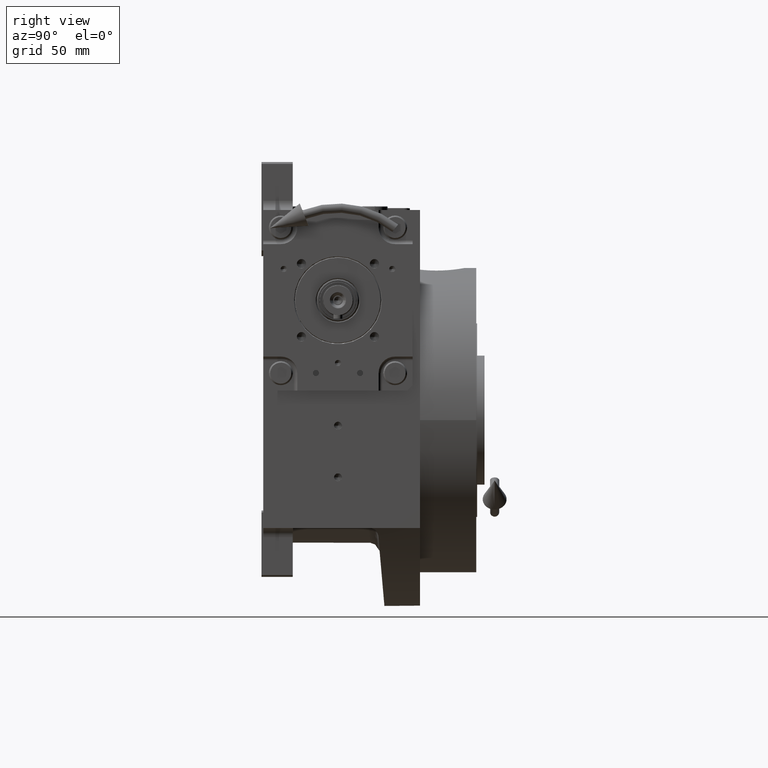
[diagram: clean part render]
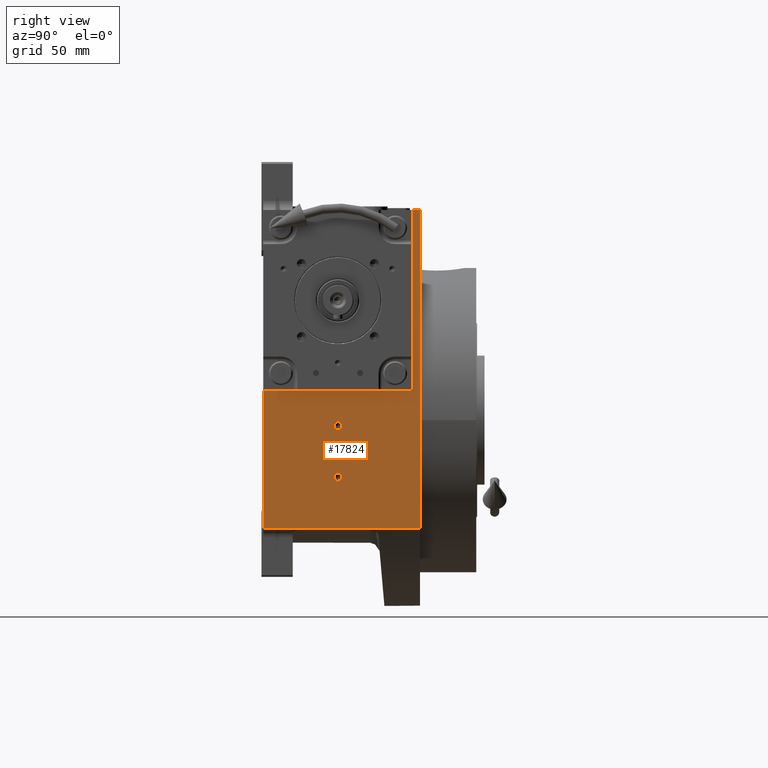
[diagram: same view with one face highlighted and labeled with its STEP entity id]
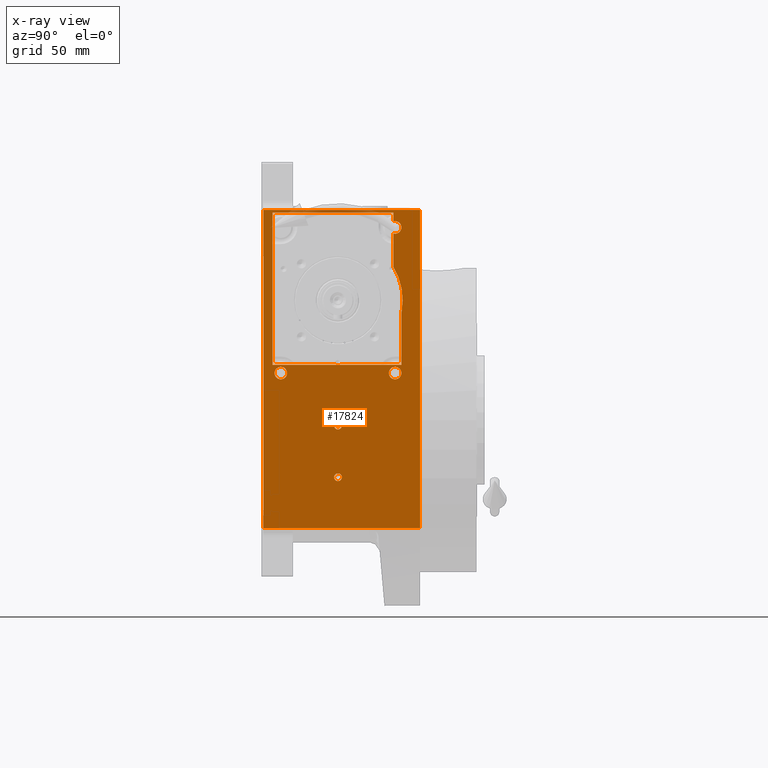
[diagram: x-ray of the same camera — body ghosted, the highlighted face saturated]
A machine part, right view. The second image highlights one B-rep face of the part: STEP entity #17824.
The next image is the same camera in x-ray: the body ghosted, the highlighted face saturated — about 1% of this face is hidden behind the body in this view.
In plain terms, the highlighted planar face has unit normal (1, 0, -0).
Its self-contained STEP definition (entity closure, byte-faithful):
#179 = ORIENTED_EDGE ( 'NONE', *, *, #26712, .T. ) ;
#329 = CARTESIAN_POINT ( 'NONE',  ( 82.50000000000000000, 34.49999998686116243, 58.58312853369196205 ) ) ;
#636 = EDGE_LOOP ( 'NONE', ( #24340, #58828 ) ) ;
#1075 = VERTEX_POINT ( 'NONE', #16192 ) ;
#1193 = CARTESIAN_POINT ( 'NONE',  ( 82.50000000000000000, -27.59999999999999787, 25.50000000000000000 ) ) ;
#1353 = ORIENTED_EDGE ( 'NONE', *, *, #31194, .F. ) ;
#1822 = EDGE_CURVE ( 'NONE', #35658, #33334, #29864, .T. ) ;
#2094 = CARTESIAN_POINT ( 'NONE',  ( 82.50000000000000000, 0.000000000000000000, -3.000000000000000000 ) ) ;
#2337 = EDGE_CURVE ( 'NONE', #7049, #26649, #61303, .T. ) ;
#3577 = ORIENTED_EDGE ( 'NONE', *, *, #23178, .T. ) ;
#3759 = CARTESIAN_POINT ( 'NONE',  ( 82.50000000000000000, -40.50000000000000000, 112.4999999999999005 ) ) ;
#3854 = EDGE_CURVE ( 'NONE', #24035, #47354, #33181, .T. ) ;
#3869 = DIRECTION ( 'NONE',  ( -1.647635329298784785E-16, -4.048429820936533247E-12, -1.000000000000000000 ) ) ;
#4087 = CARTESIAN_POINT ( 'NONE',  ( 82.50000000000000000, 33.81974078154515695, 74.46453734952115155 ) ) ;
#5328 = VERTEX_POINT ( 'NONE', #43110 ) ;
#5570 = CIRCLE ( 'NONE', #41683, 2.100000000000000089 ) ;
#5757 = CIRCLE ( 'NONE', #53214, 2.100000000000000089 ) ;
#5768 = CARTESIAN_POINT ( 'NONE',  ( 82.50000000000000000, 31.00000000000000000, 104.5000000000000000 ) ) ;
#6129 = CARTESIAN_POINT ( 'NONE',  ( 82.50000000000000000, 16.91835670641390266, -58.49999999999130296 ) ) ;
#6646 = DIRECTION ( 'NONE',  ( 0.000000000000000000, 1.000000000000000000, 0.000000000000000000 ) ) ;
#6895 = DIRECTION ( 'NONE',  ( 0.000000000000000000, -1.000000000000000000, -8.260587980841937794E-16 ) ) ;
#6956 = FACE_OUTER_BOUND ( 'NONE', #35726, .T. ) ;
#7018 = EDGE_CURVE ( 'NONE', #54133, #51231, #15066, .T. ) ;
#7049 = VERTEX_POINT ( 'NONE', #40597 ) ;
#7164 = CARTESIAN_POINT ( 'NONE',  ( 82.50000000000000000, 2.536110083989804753, 29.99974484571772138 ) ) ;
#7280 = CARTESIAN_POINT ( 'NONE',  ( 82.50000000000001421, 2.414562605747844383E-09, 29.90816376169637891 ) ) ;
#7591 = PLANE ( 'NONE',  #8900 ) ;
#7632 = ORIENTED_EDGE ( 'NONE', *, *, #16361, .F. ) ;
#8221 = CARTESIAN_POINT ( 'NONE',  ( 82.49999999999998579, 34.49999999999999289, 30.00000000000000000 ) ) ;
#8235 = FACE_BOUND ( 'NONE', #33486, .T. ) ;
#8603 = CARTESIAN_POINT ( 'NONE',  ( 82.49999999999998579, 34.44127179831260577, 71.73571205950983654 ) ) ;
#8668 = VECTOR ( 'NONE', #3869, 1000.000000000000000 ) ;
#8900 = AXIS2_PLACEMENT_3D ( 'NONE', #13098, #37350, #32832 ) ;
#9104 = DIRECTION ( 'NONE',  ( -1.633252391761930827E-32, -1.000000000000000000, -9.912705577010326782E-17 ) ) ;
#9760 = VERTEX_POINT ( 'NONE', #7280 ) ;
#10056 = CARTESIAN_POINT ( 'NONE',  ( 82.50000000000000000, 29.99999999998061995, 107.7496153618484129 ) ) ;
#10289 = DIRECTION ( 'NONE',  ( 0.000000000000000000, 1.000000000000000000, 4.081702296416015997E-15 ) ) ;
#10432 = CARTESIAN_POINT ( 'NONE',  ( 82.49999999999998579, -0.8483810300191864107, 29.90807573436788758 ) ) ;
#10447 = CIRCLE ( 'NONE', #46562, 3.400000000000000355 ) ;
#11242 = B_SPLINE_CURVE_WITH_KNOTS ( 'NONE', 3,
 ( #28656, #23812, #18009, #62287, #48341, #37722, #4087, #43823, #8603, #57750, #52877, #18326, #18962, #53838 ),
 .UNSPECIFIED., .F., .F.,
 ( 4, 2, 2, 1, 2, 2, 1, 4 ),
 ( 0.8263553266775865991, 0.8697664950081898105, 0.8914720791734912497, 0.9131776633387927999, 0.9348832475040943502, 0.9457360395867453473, 0.9565888316693962334, 1.000000000000000000 ),
 .UNSPECIFIED. ) ;
#11601 = AXIS2_PLACEMENT_3D ( 'NONE', #57186, #51987, #37174 ) ;
#11860 = ORIENTED_EDGE ( 'NONE', *, *, #34146, .T. ) ;
#11865 = CARTESIAN_POINT ( 'NONE',  ( 82.50000000000000000, 29.99999999999985079, 112.4999999999999005 ) ) ;
#11867 = ORIENTED_EDGE ( 'NONE', *, *, #53211, .T. ) ;
#11985 = EDGE_LOOP ( 'NONE', ( #15532, #35167 ) ) ;
#12004 = EDGE_CURVE ( 'NONE', #22917, #44144, #61179, .T. ) ;
#12071 = CARTESIAN_POINT ( 'NONE',  ( 82.50000000000000000, 0.000000000000000000, -3.000000000000000000 ) ) ;
#12107 = VERTEX_POINT ( 'NONE', #28473 ) ;
#12459 = DIRECTION ( 'NONE',  ( -1.647635329298784785E-16, 0.000000000000000000, -1.000000000000000000 ) ) ;
#13098 = CARTESIAN_POINT ( 'NONE',  ( 82.50000000000000000, -40.50000000000000000, 114.0000000000000000 ) ) ;
#13427 = EDGE_CURVE ( 'NONE', #1075, #17168, #60458, .T. ) ;
#13767 = VECTOR ( 'NONE', #45268, 1000.000000000000000 ) ;
#13779 = DIRECTION ( 'NONE',  ( -1.647635329298784785E-16, -4.048429820936533247E-12, -1.000000000000000000 ) ) ;
#13856 = VERTEX_POINT ( 'NONE', #10056 ) ;
#13931 = CARTESIAN_POINT ( 'NONE',  ( 82.49999999999998579, 34.89175272516990844, 60.68897464567918831 ) ) ;
#15066 = CIRCLE ( 'NONE', #51165, 2.100000000000000089 ) ;
#15532 = ORIENTED_EDGE ( 'NONE', *, *, #1822, .F. ) ;
#16018 = VECTOR ( 'NONE', #27431, 1000.000000000000000 ) ;
#16192 = CARTESIAN_POINT ( 'NONE',  ( 82.50001592702780329, 35.09186693526755363, 65.00000042374568920 ) ) ;
#16361 = EDGE_CURVE ( 'NONE', #37149, #39930, #50454, .T. ) ;
#16671 = CARTESIAN_POINT ( 'NONE',  ( 82.50000000000000000, 31.00000000000000000, 25.50000000000000000 ) ) ;
#16684 = B_SPLINE_CURVE_WITH_KNOTS ( 'NONE', 3,
 ( #7164, #52381, #46904, #16891 ),
 .UNSPECIFIED., .F., .F.,
 ( 4, 4 ),
 ( 0.4769929901098248770, 0.5000001611269361268 ),
 .UNSPECIFIED. ) ;
#16891 = CARTESIAN_POINT ( 'NONE',  ( 82.50000000000001421, 2.414562605747844383E-09, 29.90816376169637891 ) ) ;
#17003 = FACE_BOUND ( 'NONE', #33719, .T. ) ;
#17168 = VERTEX_POINT ( 'NONE', #39352 ) ;
#17169 = ORIENTED_EDGE ( 'NONE', *, *, #13427, .T. ) ;
#17183 = VERTEX_POINT ( 'NONE', #49015 ) ;
#17184 = CIRCLE ( 'NONE', #41939, 3.400000000000000355 ) ;
#17824 = ADVANCED_FACE ( 'NONE', ( #17003, #46695, #41546, #8235, #6956, #57052 ), #7591, .T. ) ;
#17828 = ORIENTED_EDGE ( 'NONE', *, *, #30168, .F. ) ;
#18009 = CARTESIAN_POINT ( 'NONE',  ( 82.50000000000000000, 31.55973645480924361, 80.42730196816596333 ) ) ;
#18326 = CARTESIAN_POINT ( 'NONE',  ( 82.49999999999997158, 34.95339362933337668, 68.60173905830357910 ) ) ;
#18469 = CARTESIAN_POINT ( 'NONE',  ( 82.50000000000000000, -35.50000000000001421, 114.0000000000000000 ) ) ;
#18962 = CARTESIAN_POINT ( 'NONE',  ( 82.49999999999997158, 35.08975786824625231, 66.61097725807486825 ) ) ;
#19425 = DIRECTION ( 'NONE',  ( 1.000000000000000000, 0.000000000000000000, 0.000000000000000000 ) ) ;
#20085 = LINE ( 'NONE', #25564, #13767 ) ;
#20125 = VECTOR ( 'NONE', #13779, 1000.000000000000000 ) ;
#20981 = CARTESIAN_POINT ( 'NONE',  ( 82.50000000000000000, 31.00000000000000000, 104.5000000000000000 ) ) ;
#21636 = DIRECTION ( 'NONE',  ( 0.000000000000000000, 1.000000000000000000, -2.040851148208007998E-15 ) ) ;
#21823 = DIRECTION ( 'NONE',  ( 1.000000000000000000, 0.000000000000000000, 0.000000000000000000 ) ) ;
#22222 = ORIENTED_EDGE ( 'NONE', *, *, #56039, .T. ) ;
#22365 = CARTESIAN_POINT ( 'NONE',  ( 82.50000025238179546, 16.91834884610074852, -58.49999999999619860 ) ) ;
#22917 = VERTEX_POINT ( 'NONE', #63797 ) ;
#23178 = EDGE_CURVE ( 'NONE', #9760, #17183, #36515, .T. ) ;
#23812 = CARTESIAN_POINT ( 'NONE',  ( 82.50000000000001421, 30.82805572436245711, 81.84190272524516274 ) ) ;
#24035 = VERTEX_POINT ( 'NONE', #57029 ) ;
#24340 = ORIENTED_EDGE ( 'NONE', *, *, #7018, .F. ) ;
#24782 = VECTOR ( 'NONE', #12459, 1000.000000000000000 ) ;
#25485 = DIRECTION ( 'NONE',  ( 0.000000000000000000, -1.000000000000000000, 0.000000000000000000 ) ) ;
#25542 = VECTOR ( 'NONE', #30450, 1000.000000000000000 ) ;
#25564 = CARTESIAN_POINT ( 'NONE',  ( 82.50000000000000000, 34.49999999999999289, 114.0000000000000000 ) ) ;
#25959 = CARTESIAN_POINT ( 'NONE',  ( 82.50000000000001421, 2.414562605747844383E-09, 29.90816376169637891 ) ) ;
#26007 = VERTEX_POINT ( 'NONE', #59397 ) ;
#26260 = EDGE_LOOP ( 'NONE', ( #17828, #48153, #43352, #17169, #47459, #22222, #41304, #3577, #11860, #179, #11867, #41893, #57716 ) ) ;
#26649 = VERTEX_POINT ( 'NONE', #22365 ) ;
#26694 = CARTESIAN_POINT ( 'NONE',  ( 82.50000000000000000, 44.50000000000000000, 114.0000000000000000 ) ) ;
#26712 = EDGE_CURVE ( 'NONE', #26007, #12107, #57559, .T. ) ;
#26945 = VECTOR ( 'NONE', #43646, 1000.000000000000000 ) ;
#27160 = CIRCLE ( 'NONE', #50862, 3.400000000000000355 ) ;
#27431 = DIRECTION ( 'NONE',  ( 0.000000000000000000, 1.000000000000000000, -3.142895179957984790E-13 ) ) ;
#27759 = CARTESIAN_POINT ( 'NONE',  ( 82.49999999999998579, 30.00000000960658042, 83.20547276137477866 ) ) ;
#27949 = EDGE_CURVE ( 'NONE', #60188, #9760, #16684, .T. ) ;
#28094 = DIRECTION ( 'NONE',  ( 1.000000000000000000, 0.000000000000000000, 0.000000000000000000 ) ) ;
#28449 = CARTESIAN_POINT ( 'NONE',  ( 82.50000000000000000, 30.00000000000593303, 113.9999999997145892 ) ) ;
#28473 = CARTESIAN_POINT ( 'NONE',  ( 82.49999999999998579, -35.50000000000001421, 112.4999999999999005 ) ) ;
#28584 = EDGE_CURVE ( 'NONE', #33334, #35658, #10447, .T. ) ;
#28656 = CARTESIAN_POINT ( 'NONE',  ( 82.49999999999998579, 30.00000000960658042, 83.20547276137477866 ) ) ;
#28995 = VECTOR ( 'NONE', #45174, 1000.000000000000000 ) ;
#29111 = EDGE_CURVE ( 'NONE', #47354, #1075, #11242, .T. ) ;
#29531 = CARTESIAN_POINT ( 'NONE',  ( 82.50000000000000000, -2.536110689832524745, 29.99973653616786606 ) ) ;
#29828 = EDGE_CURVE ( 'NONE', #41820, #41445, #37461, .T. ) ;
#29864 = CIRCLE ( 'NONE', #38121, 3.400000000000000355 ) ;
#30168 = EDGE_CURVE ( 'NONE', #24035, #37456, #27160, .T. ) ;
#30449 = ORIENTED_EDGE ( 'NONE', *, *, #62535, .T. ) ;
#30450 = DIRECTION ( 'NONE',  ( 0.000000000000000000, 1.000000000000000000, 0.000000000000000000 ) ) ;
#30460 = CARTESIAN_POINT ( 'NONE',  ( 82.50000000000000000, -34.39999999999999858, 25.50000000000000000 ) ) ;
#30605 = DIRECTION ( 'NONE',  ( 1.000000000000000000, 0.000000000000000000, 0.000000000000000000 ) ) ;
#30763 = VECTOR ( 'NONE', #42798, 1000.000000000000000 ) ;
#31194 = EDGE_CURVE ( 'NONE', #41445, #41820, #5570, .T. ) ;
#31531 = DIRECTION ( 'NONE',  ( 0.000000000000000000, 1.000000000000000000, 8.260587980841937794E-16 ) ) ;
#31574 = CARTESIAN_POINT ( 'NONE',  ( 82.50000000000000000, -40.50000000000000000, -58.50000000000000000 ) ) ;
#32799 = EDGE_CURVE ( 'NONE', #51231, #54133, #5757, .T. ) ;
#32816 = LINE ( 'NONE', #8221, #30763 ) ;
#32832 = DIRECTION ( 'NONE',  ( -1.647635329298784785E-16, 0.000000000000000000, -1.000000000000000000 ) ) ;
#33181 = LINE ( 'NONE', #38350, #20125 ) ;
#33334 = VERTEX_POINT ( 'NONE', #30460 ) ;
#33486 = EDGE_LOOP ( 'NONE', ( #60754, #39622 ) ) ;
#33648 = CARTESIAN_POINT ( 'NONE',  ( 82.50000000000000000, 31.00000000000000000, 25.50000000000000000 ) ) ;
#33695 = EDGE_CURVE ( 'NONE', #26649, #53288, #50384, .T. ) ;
#33719 = EDGE_LOOP ( 'NONE', ( #1353, #47937 ) ) ;
#33993 = CARTESIAN_POINT ( 'NONE',  ( 82.50000000000000000, 2.100000000000000089, -3.000000000000000000 ) ) ;
#34146 = EDGE_CURVE ( 'NONE', #17183, #26007, #32816, .T. ) ;
#35092 = VECTOR ( 'NONE', #35806, 1000.000000000000000 ) ;
#35167 = ORIENTED_EDGE ( 'NONE', *, *, #28584, .F. ) ;
#35658 = VERTEX_POINT ( 'NONE', #1193 ) ;
#35685 = CARTESIAN_POINT ( 'NONE',  ( 82.50000000000000000, -2.100000000000000089, -3.000000000000000000 ) ) ;
#35726 = EDGE_LOOP ( 'NONE', ( #63378, #7632, #30449, #48483, #50079 ) ) ;
#35806 = DIRECTION ( 'NONE',  ( 0.000000000000000000, 1.000000000000000000, 0.000000000000000000 ) ) ;
#35840 = DIRECTION ( 'NONE',  ( 1.000000000000000000, 0.000000000000000000, 0.000000000000000000 ) ) ;
#36374 = DIRECTION ( 'NONE',  ( 0.000000000000000000, -1.000000000000000000, 0.000000000000000000 ) ) ;
#36515 = B_SPLINE_CURVE_WITH_KNOTS ( 'NONE', 3,
 ( #25959, #10432, #49539, #29531 ),
 .UNSPECIFIED., .F., .F.,
 ( 4, 4 ),
 ( 0.5000001611269361268, 0.5230119329669968842 ),
 .UNSPECIFIED. ) ;
#36997 = CIRCLE ( 'NONE', #55528, 3.400000000000000355 ) ;
#37149 = VERTEX_POINT ( 'NONE', #57732 ) ;
#37174 = DIRECTION ( 'NONE',  ( 0.000000000000000000, -1.000000000000000000, 0.000000000000000000 ) ) ;
#37260 = LINE ( 'NONE', #53381, #49917 ) ;
#37350 = DIRECTION ( 'NONE',  ( 1.000000000000000000, 0.000000000000000000, -1.647635329298784785E-16 ) ) ;
#37456 = VERTEX_POINT ( 'NONE', #56365 ) ;
#37461 = CIRCLE ( 'NONE', #11601, 2.100000000000000089 ) ;
#37678 = CARTESIAN_POINT ( 'NONE',  ( 82.50000000000000000, 2.100000000000000089, -31.00000000000000000 ) ) ;
#37722 = CARTESIAN_POINT ( 'NONE',  ( 82.50000000000001421, 33.33865609199173718, 75.98322085332500819 ) ) ;
#38121 = AXIS2_PLACEMENT_3D ( 'NONE', #44904, #60101, #21636 ) ;
#38350 = CARTESIAN_POINT ( 'NONE',  ( 82.50000000000000000, 30.00000000000593303, 113.9999999997145892 ) ) ;
#39352 = CARTESIAN_POINT ( 'NONE',  ( 82.50000000000000000, 34.49999998686116243, 58.58312853369196205 ) ) ;
#39622 = ORIENTED_EDGE ( 'NONE', *, *, #45934, .F. ) ;
#39930 = VERTEX_POINT ( 'NONE', #26694 ) ;
#40597 = CARTESIAN_POINT ( 'NONE',  ( 82.50000000000000000, -40.50000000000000000, -58.50000000000000000 ) ) ;
#41304 = ORIENTED_EDGE ( 'NONE', *, *, #27949, .T. ) ;
#41445 = VERTEX_POINT ( 'NONE', #37678 ) ;
#41546 = FACE_BOUND ( 'NONE', #11985, .T. ) ;
#41560 = AXIS2_PLACEMENT_3D ( 'NONE', #33648, #19425, #53668 ) ;
#41683 = AXIS2_PLACEMENT_3D ( 'NONE', #60950, #30605, #6646 ) ;
#41820 = VERTEX_POINT ( 'NONE', #61537 ) ;
#41893 = ORIENTED_EDGE ( 'NONE', *, *, #56432, .T. ) ;
#41939 = AXIS2_PLACEMENT_3D ( 'NONE', #16671, #51831, #36374 ) ;
#42798 = DIRECTION ( 'NONE',  ( 0.000000000000000000, -1.000000000000000000, -9.912705577010326782E-17 ) ) ;
#42822 = CARTESIAN_POINT ( 'NONE',  ( 82.50000000000000000, -40.50000000000000000, 114.0000000000000000 ) ) ;
#43110 = CARTESIAN_POINT ( 'NONE',  ( 82.49999999999998579, 34.49999999999999289, 30.00000000000000000 ) ) ;
#43330 = CARTESIAN_POINT ( 'NONE',  ( 82.50001592702780329, 35.09186693526755363, 65.00000042374568920 ) ) ;
#43352 = ORIENTED_EDGE ( 'NONE', *, *, #29111, .T. ) ;
#43496 = DIRECTION ( 'NONE',  ( 0.000000000000000000, 1.000000000000000000, 0.000000000000000000 ) ) ;
#43646 = DIRECTION ( 'NONE',  ( 1.647635329298784785E-16, 0.000000000000000000, 1.000000000000000000 ) ) ;
#43823 = CARTESIAN_POINT ( 'NONE',  ( 82.50000000000001421, 34.19712326406279601, 72.91238130060928313 ) ) ;
#44144 = VERTEX_POINT ( 'NONE', #45491 ) ;
#44870 = DIRECTION ( 'NONE',  ( 1.000000000000000000, 0.000000000000000000, 0.000000000000000000 ) ) ;
#44904 = CARTESIAN_POINT ( 'NONE',  ( 82.50000000000000000, -31.00000000000000000, 25.50000000000000000 ) ) ;
#45174 = DIRECTION ( 'NONE',  ( -1.647635329298784785E-16, 0.000000000000000000, -1.000000000000000000 ) ) ;
#45268 = DIRECTION ( 'NONE',  ( -1.647635329298784785E-16, 0.000000000000000000, -1.000000000000000000 ) ) ;
#45417 = CARTESIAN_POINT ( 'NONE',  ( 82.50000000000000000, 44.50000000000000000, -58.50000000000000000 ) ) ;
#45491 = CARTESIAN_POINT ( 'NONE',  ( 82.50000000000000000, 27.59999999999999787, 25.50000000000000000 ) ) ;
#45913 = CARTESIAN_POINT ( 'NONE',  ( 82.50000000000000000, -40.50000000000000000, 114.0000000000000000 ) ) ;
#45934 = EDGE_CURVE ( 'NONE', #44144, #22917, #17184, .T. ) ;
#46562 = AXIS2_PLACEMENT_3D ( 'NONE', #58456, #28094, #47775 ) ;
#46695 = FACE_BOUND ( 'NONE', #636, .T. ) ;
#46745 = EDGE_CURVE ( 'NONE', #37456, #13856, #36997, .T. ) ;
#46904 = CARTESIAN_POINT ( 'NONE',  ( 82.49999999999998579, 0.8482114151010448078, 29.90810332843309993 ) ) ;
#47354 = VERTEX_POINT ( 'NONE', #27759 ) ;
#47459 = ORIENTED_EDGE ( 'NONE', *, *, #55527, .T. ) ;
#47775 = DIRECTION ( 'NONE',  ( 0.000000000000000000, -1.000000000000000000, 2.040851148208007998E-15 ) ) ;
#47937 = ORIENTED_EDGE ( 'NONE', *, *, #29828, .F. ) ;
#47978 = LINE ( 'NONE', #42822, #24782 ) ;
#48010 = LINE ( 'NONE', #3759, #52873 ) ;
#48153 = ORIENTED_EDGE ( 'NONE', *, *, #3854, .T. ) ;
#48341 = CARTESIAN_POINT ( 'NONE',  ( 82.50000000000001421, 32.80572029892041996, 77.48516808457488025 ) ) ;
#48483 = ORIENTED_EDGE ( 'NONE', *, *, #2337, .T. ) ;
#49015 = CARTESIAN_POINT ( 'NONE',  ( 82.50000000000000000, -2.536110689832524745, 29.99973653616786606 ) ) ;
#49539 = CARTESIAN_POINT ( 'NONE',  ( 82.49999999999998579, -1.693757624165966202, 29.93853691575077747 ) ) ;
#49917 = VECTOR ( 'NONE', #9104, 1000.000000000000000 ) ;
#50026 = CARTESIAN_POINT ( 'NONE',  ( 82.50000000000000000, 44.50000000000000000, 114.0000000000000000 ) ) ;
#50079 = ORIENTED_EDGE ( 'NONE', *, *, #33695, .T. ) ;
#50342 = LINE ( 'NONE', #50026, #28995 ) ;
#50384 = LINE ( 'NONE', #6129, #16018 ) ;
#50454 = LINE ( 'NONE', #45913, #25542 ) ;
#50743 = CARTESIAN_POINT ( 'NONE',  ( 82.50000000000000000, 2.536110083989804753, 29.99974484571772138 ) ) ;
#50862 = AXIS2_PLACEMENT_3D ( 'NONE', #5768, #35840, #25485 ) ;
#50948 = EDGE_CURVE ( 'NONE', #39930, #53288, #50342, .T. ) ;
#51165 = AXIS2_PLACEMENT_3D ( 'NONE', #2094, #21823, #31531 ) ;
#51231 = VERTEX_POINT ( 'NONE', #35685 ) ;
#51831 = DIRECTION ( 'NONE',  ( 1.000000000000000000, 0.000000000000000000, 0.000000000000000000 ) ) ;
#51987 = DIRECTION ( 'NONE',  ( 1.000000000000000000, 0.000000000000000000, 0.000000000000000000 ) ) ;
#52381 = CARTESIAN_POINT ( 'NONE',  ( 82.49999999999998579, 1.693853510454309763, 29.93857005420085216 ) ) ;
#52873 = VECTOR ( 'NONE', #43496, 1000.000000000000000 ) ;
#52877 = CARTESIAN_POINT ( 'NONE',  ( 82.49999999999998579, 34.64993789476057628, 70.56380189656638890 ) ) ;
#53211 = EDGE_CURVE ( 'NONE', #12107, #54833, #48010, .T. ) ;
#53214 = AXIS2_PLACEMENT_3D ( 'NONE', #12071, #61536, #6895 ) ;
#53288 = VERTEX_POINT ( 'NONE', #45417 ) ;
#53381 = CARTESIAN_POINT ( 'NONE',  ( 82.49999999999998579, -40.49999999999999289, 29.99999999999998579 ) ) ;
#53668 = DIRECTION ( 'NONE',  ( 0.000000000000000000, 1.000000000000000000, 0.000000000000000000 ) ) ;
#53838 = CARTESIAN_POINT ( 'NONE',  ( 82.50001592702780329, 35.09186693526755363, 65.00000042374568920 ) ) ;
#54133 = VERTEX_POINT ( 'NONE', #33993 ) ;
#54833 = VERTEX_POINT ( 'NONE', #11865 ) ;
#55527 = EDGE_CURVE ( 'NONE', #17168, #5328, #20085, .T. ) ;
#55528 = AXIS2_PLACEMENT_3D ( 'NONE', #20981, #44870, #10289 ) ;
#56039 = EDGE_CURVE ( 'NONE', #5328, #60188, #37260, .T. ) ;
#56365 = CARTESIAN_POINT ( 'NONE',  ( 82.50000000000000000, 34.39999999999999858, 104.5000000000000000 ) ) ;
#56432 = EDGE_CURVE ( 'NONE', #54833, #13856, #63020, .T. ) ;
#57029 = CARTESIAN_POINT ( 'NONE',  ( 82.50000000000000000, 29.99999999995431565, 101.2503846381596730 ) ) ;
#57052 = FACE_BOUND ( 'NONE', #26260, .T. ) ;
#57186 = CARTESIAN_POINT ( 'NONE',  ( 82.50000000000000000, 0.000000000000000000, -31.00000000000000000 ) ) ;
#57559 = LINE ( 'NONE', #18469, #26945 ) ;
#57716 = ORIENTED_EDGE ( 'NONE', *, *, #46745, .F. ) ;
#57732 = CARTESIAN_POINT ( 'NONE',  ( 82.50000000000000000, -40.50000000000000000, 114.0000000000000000 ) ) ;
#57750 = CARTESIAN_POINT ( 'NONE',  ( 82.49999999999997158, 34.51518828127864680, 71.34633111491422142 ) ) ;
#58456 = CARTESIAN_POINT ( 'NONE',  ( 82.50000000000000000, -31.00000000000000000, 25.50000000000000000 ) ) ;
#58828 = ORIENTED_EDGE ( 'NONE', *, *, #32799, .F. ) ;
#59397 = CARTESIAN_POINT ( 'NONE',  ( 82.49999999999998579, -35.50000000000001421, 29.99999999999999289 ) ) ;
#60101 = DIRECTION ( 'NONE',  ( 1.000000000000000000, 0.000000000000000000, 0.000000000000000000 ) ) ;
#60188 = VERTEX_POINT ( 'NONE', #50743 ) ;
#60458 = B_SPLINE_CURVE_WITH_KNOTS ( 'NONE', 3,
 ( #43330, #63055, #13931, #329 ),
 .UNSPECIFIED., .F., .F.,
 ( 4, 4 ),
 ( 0.000000000000000000, 0.05853918765828202558 ),
 .UNSPECIFIED. ) ;
#60754 = ORIENTED_EDGE ( 'NONE', *, *, #12004, .F. ) ;
#60950 = CARTESIAN_POINT ( 'NONE',  ( 82.50000000000000000, 2.220446049250315053E-16, -31.00000000000000000 ) ) ;
#61179 = CIRCLE ( 'NONE', #41560, 3.400000000000000355 ) ;
#61303 = LINE ( 'NONE', #31574, #35092 ) ;
#61536 = DIRECTION ( 'NONE',  ( 1.000000000000000000, 0.000000000000000000, 0.000000000000000000 ) ) ;
#61537 = CARTESIAN_POINT ( 'NONE',  ( 82.50000000000000000, -2.100000000000000089, -31.00000000000000000 ) ) ;
#62287 = CARTESIAN_POINT ( 'NONE',  ( 82.50000000000000000, 32.51283170918762977, 78.22893766805258053 ) ) ;
#62535 = EDGE_CURVE ( 'NONE', #37149, #7049, #47978, .T. ) ;
#63020 = LINE ( 'NONE', #28449, #8668 ) ;
#63055 = CARTESIAN_POINT ( 'NONE',  ( 82.49999999999998579, 35.08908208338716861, 62.82792700497097371 ) ) ;
#63378 = ORIENTED_EDGE ( 'NONE', *, *, #50948, .F. ) ;
#63797 = CARTESIAN_POINT ( 'NONE',  ( 82.50000000000000000, 34.39999999999999858, 25.50000000000000000 ) ) ;